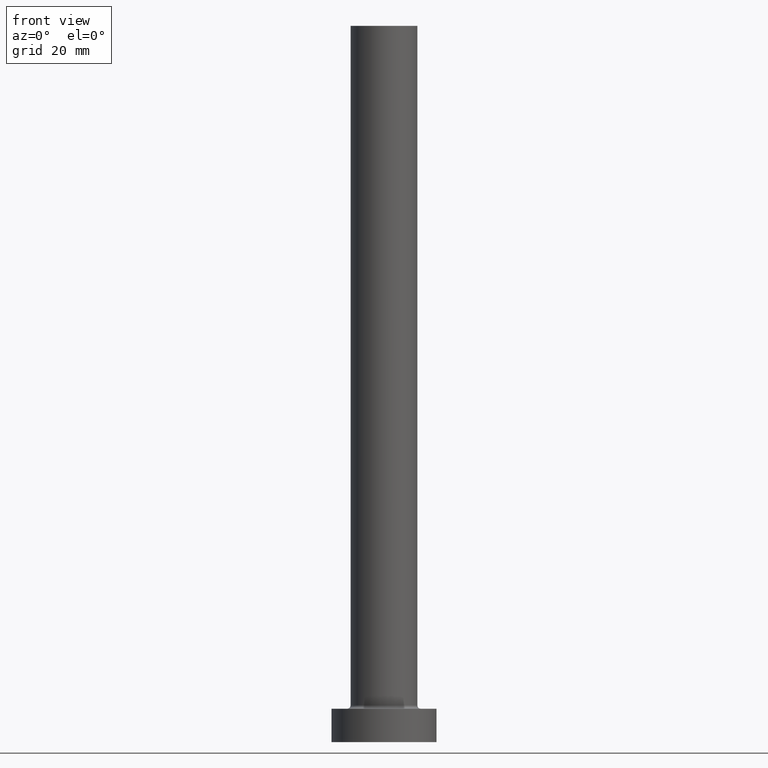
[diagram: clean part render]
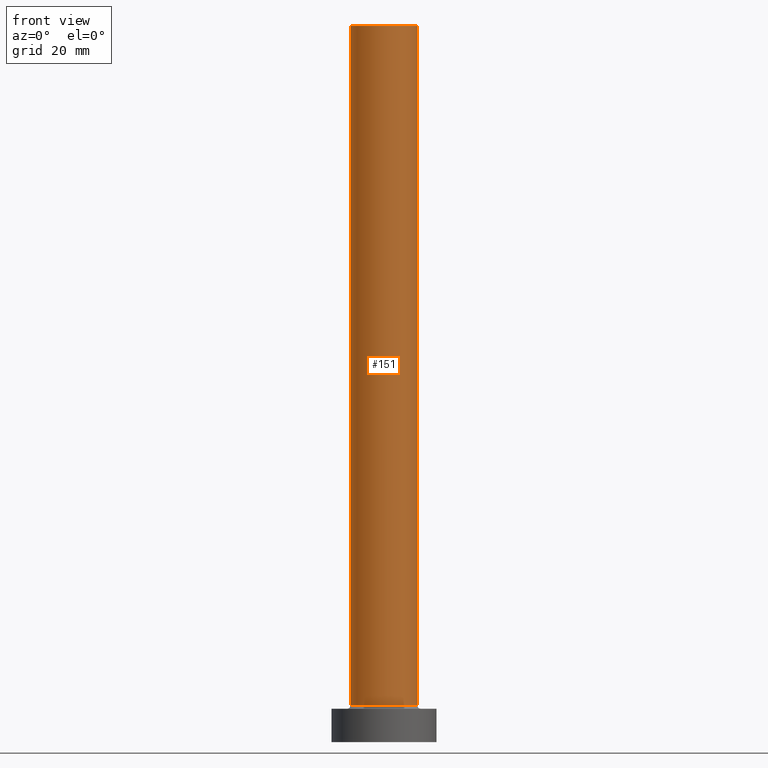
[diagram: same view with one face highlighted and labeled with its STEP entity id]
A machine part, front view. The second image highlights one B-rep face of the part: STEP entity #151.
In plain terms, the highlighted cylindrical surface (edge-blend (fillet) strip) has radius 7 mm, axis along (-0, -0, -1).
Its self-contained STEP definition (entity closure, byte-faithful):
#5 = CIRCLE ( 'NONE', #233, 7.000000000000000888 ) ;
#8 = CARTESIAN_POINT ( 'NONE',  ( -7.000000000000000888, 0.000000000000000000, 150.0000000000000000 ) ) ;
#11 = CIRCLE ( 'NONE', #254, 7.000000000000000888 ) ;
#12 = DIRECTION ( 'NONE',  ( -1.000000000000000000, 0.000000000000000000, 0.000000000000000000 ) ) ;
#40 = VERTEX_POINT ( 'NONE', #147 ) ;
#49 = ORIENTED_EDGE ( 'NONE', *, *, #62, .T. ) ;
#62 = EDGE_CURVE ( 'NONE', #75, #40, #11, .T. ) ;
#75 = VERTEX_POINT ( 'NONE', #136 ) ;
#80 = CYLINDRICAL_SURFACE ( 'NONE', #249, 7.000000000000000888 ) ;
#99 = DIRECTION ( 'NONE',  ( 0.000000000000000000, 0.000000000000000000, 1.000000000000000000 ) ) ;
#106 = DIRECTION ( 'NONE',  ( 1.000000000000000000, 0.000000000000000000, 0.000000000000000000 ) ) ;
#121 = CARTESIAN_POINT ( 'NONE',  ( 0.000000000000000000, 0.000000000000000000, 150.0000000000000000 ) ) ;
#127 = DIRECTION ( 'NONE',  ( -0.000000000000000000, -0.000000000000000000, -1.000000000000000000 ) ) ;
#129 = CARTESIAN_POINT ( 'NONE',  ( 0.000000000000000000, 0.000000000000000000, 150.0000000000000000 ) ) ;
#136 = CARTESIAN_POINT ( 'NONE',  ( -7.000000000000000888, 0.000000000000000000, 7.700000000000012612 ) ) ;
#147 = CARTESIAN_POINT ( 'NONE',  ( 7.000000000000000888, 8.572527594031474176E-16, 7.700000000000012612 ) ) ;
#151 = ADVANCED_FACE ( 'NONE', ( #290 ), #80, .T. ) ;
#153 = DIRECTION ( 'NONE',  ( -0.000000000000000000, -0.000000000000000000, -1.000000000000000000 ) ) ;
#164 = LINE ( 'NONE', #446, #306 ) ;
#190 = DIRECTION ( 'NONE',  ( 0.000000000000000000, 0.000000000000000000, 1.000000000000000000 ) ) ;
#233 = AXIS2_PLACEMENT_3D ( 'NONE', #129, #190, #106 ) ;
#249 = AXIS2_PLACEMENT_3D ( 'NONE', #121, #153, #12 ) ;
#254 = AXIS2_PLACEMENT_3D ( 'NONE', #342, #99, #454 ) ;
#286 = VERTEX_POINT ( 'NONE', #298 ) ;
#290 = FACE_OUTER_BOUND ( 'NONE', #391, .T. ) ;
#295 = DIRECTION ( 'NONE',  ( -0.000000000000000000, -0.000000000000000000, -1.000000000000000000 ) ) ;
#298 = CARTESIAN_POINT ( 'NONE',  ( 7.000000000000000888, 8.572527594031474176E-16, 150.0000000000000000 ) ) ;
#305 = EDGE_CURVE ( 'NONE', #349, #286, #5, .T. ) ;
#306 = VECTOR ( 'NONE', #127, 1000.000000000000000 ) ;
#312 = ORIENTED_EDGE ( 'NONE', *, *, #322, .F. ) ;
#322 = EDGE_CURVE ( 'NONE', #286, #40, #378, .T. ) ;
#325 = ORIENTED_EDGE ( 'NONE', *, *, #305, .F. ) ;
#331 = CARTESIAN_POINT ( 'NONE',  ( 7.000000000000000888, 8.572527594031474176E-16, 150.0000000000000000 ) ) ;
#342 = CARTESIAN_POINT ( 'NONE',  ( 0.000000000000000000, 0.000000000000000000, 7.700000000000012612 ) ) ;
#349 = VERTEX_POINT ( 'NONE', #8 ) ;
#354 = EDGE_CURVE ( 'NONE', #349, #75, #164, .T. ) ;
#378 = LINE ( 'NONE', #331, #426 ) ;
#391 = EDGE_LOOP ( 'NONE', ( #312, #325, #402, #49 ) ) ;
#402 = ORIENTED_EDGE ( 'NONE', *, *, #354, .T. ) ;
#426 = VECTOR ( 'NONE', #295, 1000.000000000000000 ) ;
#446 = CARTESIAN_POINT ( 'NONE',  ( -7.000000000000000888, 0.000000000000000000, 150.0000000000000000 ) ) ;
#454 = DIRECTION ( 'NONE',  ( 1.000000000000000000, 0.000000000000000000, 0.000000000000000000 ) ) ;